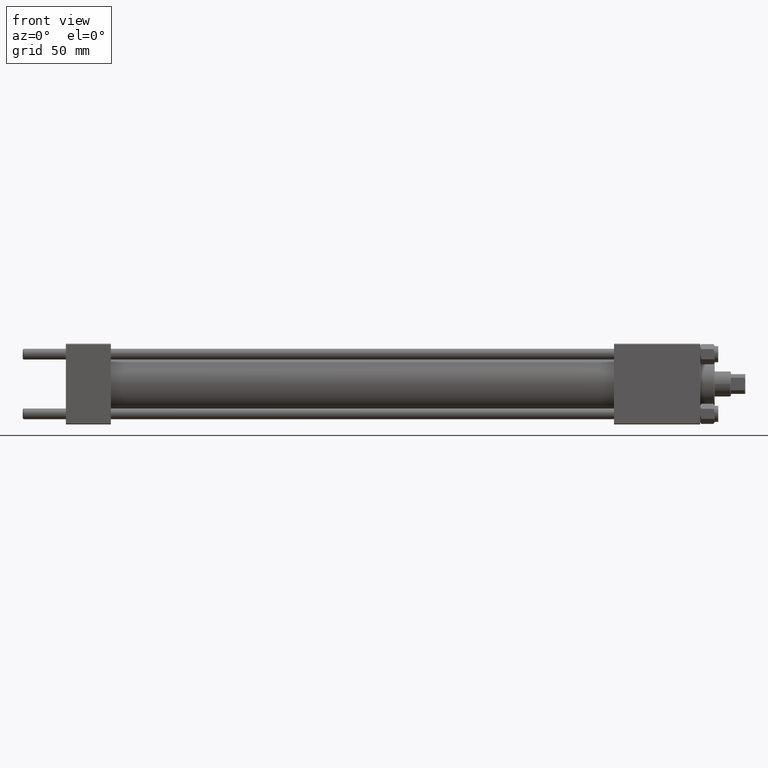
[diagram: clean part render]
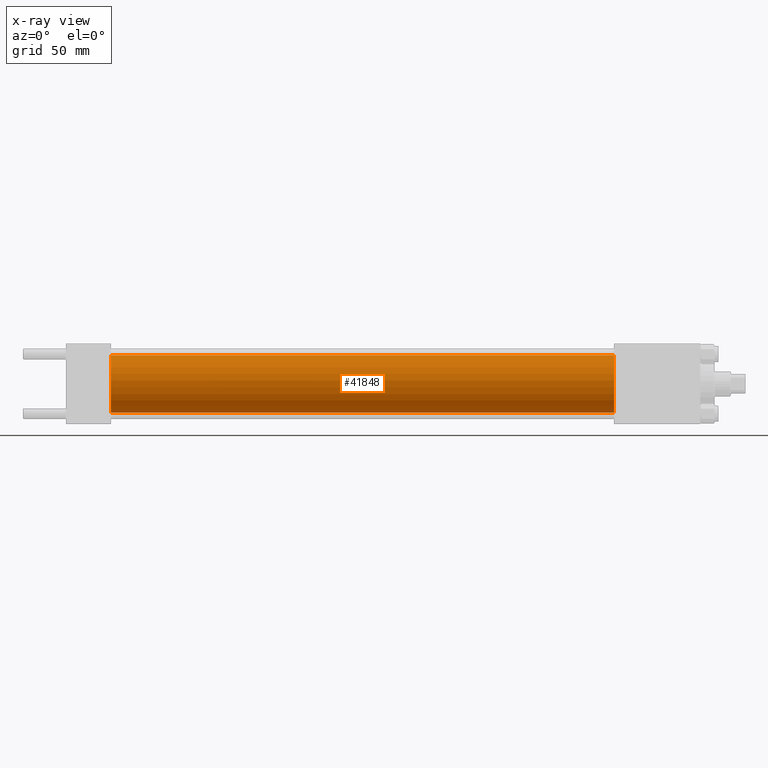
[diagram: x-ray — body ghosted, one internal face saturated and labeled with its STEP entity id]
A machine part, front view, then the same camera in x-ray: the body is ghosted and one INTERNAL B-rep face — a face not visible from any outside direction — is saturated and labeled: STEP entity #41848.
In plain terms, the highlighted cylindrical surface (edge-blend (fillet) strip) has radius 16 mm, axis along (-1, -0, -0).
Its self-contained STEP definition (entity closure, byte-faithful):
#109 = CIRCLE ( 'NONE', #42024, 16.00000000000000000 ) ;
#179 = VERTEX_POINT ( 'NONE', #45031 ) ;
#278 = ORIENTED_EDGE ( 'NONE', *, *, #36868, .T. ) ;
#832 = VERTEX_POINT ( 'NONE', #2045 ) ;
#2045 = CARTESIAN_POINT ( 'NONE',  ( 305.0000000000000568, 1.959434878635765131E-15, -16.00000000000000000 ) ) ;
#4508 = LINE ( 'NONE', #39813, #5430 ) ;
#5430 = VECTOR ( 'NONE', #46390, 1000.000000000000000 ) ;
#5990 = VECTOR ( 'NONE', #30330, 1000.000000000000000 ) ;
#10718 = DIRECTION ( 'NONE',  ( 0.000000000000000000, 0.000000000000000000, 1.000000000000000000 ) ) ;
#10898 = LINE ( 'NONE', #37883, #5990 ) ;
#11131 = ORIENTED_EDGE ( 'NONE', *, *, #21540, .T. ) ;
#11655 = EDGE_CURVE ( 'NONE', #16061, #28744, #26112, .T. ) ;
#12771 = ORIENTED_EDGE ( 'NONE', *, *, #11655, .F. ) ;
#12837 = CARTESIAN_POINT ( 'NONE',  ( 25.00000000000000000, 0.000000000000000000, 16.00000000000000000 ) ) ;
#15136 = DIRECTION ( 'NONE',  ( 0.000000000000000000, 0.000000000000000000, -1.000000000000000000 ) ) ;
#16061 = VERTEX_POINT ( 'NONE', #12837 ) ;
#17110 = CYLINDRICAL_SURFACE ( 'NONE', #21239, 16.00000000000000000 ) ;
#20866 = EDGE_LOOP ( 'NONE', ( #278, #11131, #12771, #28674 ) ) ;
#21239 = AXIS2_PLACEMENT_3D ( 'NONE', #33679, #41974, #10718 ) ;
#21540 = EDGE_CURVE ( 'NONE', #832, #28744, #4508, .T. ) ;
#26112 = CIRCLE ( 'NONE', #30150, 16.00000000000000000 ) ;
#26117 = FACE_OUTER_BOUND ( 'NONE', #20866, .T. ) ;
#27275 = CARTESIAN_POINT ( 'NONE',  ( 305.0000000000000568, 0.000000000000000000, 0.000000000000000000 ) ) ;
#28674 = ORIENTED_EDGE ( 'NONE', *, *, #48003, .F. ) ;
#28744 = VERTEX_POINT ( 'NONE', #36418 ) ;
#30150 = AXIS2_PLACEMENT_3D ( 'NONE', #41874, #38592, #15136 ) ;
#30330 = DIRECTION ( 'NONE',  ( -1.000000000000000000, -0.000000000000000000, -0.000000000000000000 ) ) ;
#33679 = CARTESIAN_POINT ( 'NONE',  ( 305.0000000000000568, 0.000000000000000000, 0.000000000000000000 ) ) ;
#34840 = DIRECTION ( 'NONE',  ( 0.000000000000000000, 0.000000000000000000, -1.000000000000000000 ) ) ;
#36418 = CARTESIAN_POINT ( 'NONE',  ( 25.00000000000000000, 1.959434878635765131E-15, -16.00000000000000000 ) ) ;
#36868 = EDGE_CURVE ( 'NONE', #179, #832, #109, .T. ) ;
#37883 = CARTESIAN_POINT ( 'NONE',  ( 305.0000000000000568, 0.000000000000000000, 16.00000000000000000 ) ) ;
#38592 = DIRECTION ( 'NONE',  ( 1.000000000000000000, 0.000000000000000000, 0.000000000000000000 ) ) ;
#39813 = CARTESIAN_POINT ( 'NONE',  ( 305.0000000000000568, 1.959434878635765131E-15, -16.00000000000000000 ) ) ;
#41848 = ADVANCED_FACE ( 'NONE', ( #26117 ), #17110, .F. ) ;
#41874 = CARTESIAN_POINT ( 'NONE',  ( 25.00000000000000000, 0.000000000000000000, 0.000000000000000000 ) ) ;
#41974 = DIRECTION ( 'NONE',  ( -1.000000000000000000, -0.000000000000000000, -0.000000000000000000 ) ) ;
#42024 = AXIS2_PLACEMENT_3D ( 'NONE', #27275, #42641, #34840 ) ;
#42641 = DIRECTION ( 'NONE',  ( 1.000000000000000000, 0.000000000000000000, 0.000000000000000000 ) ) ;
#45031 = CARTESIAN_POINT ( 'NONE',  ( 305.0000000000000568, 0.000000000000000000, 16.00000000000000000 ) ) ;
#46390 = DIRECTION ( 'NONE',  ( -1.000000000000000000, -0.000000000000000000, -0.000000000000000000 ) ) ;
#48003 = EDGE_CURVE ( 'NONE', #179, #16061, #10898, .T. ) ;